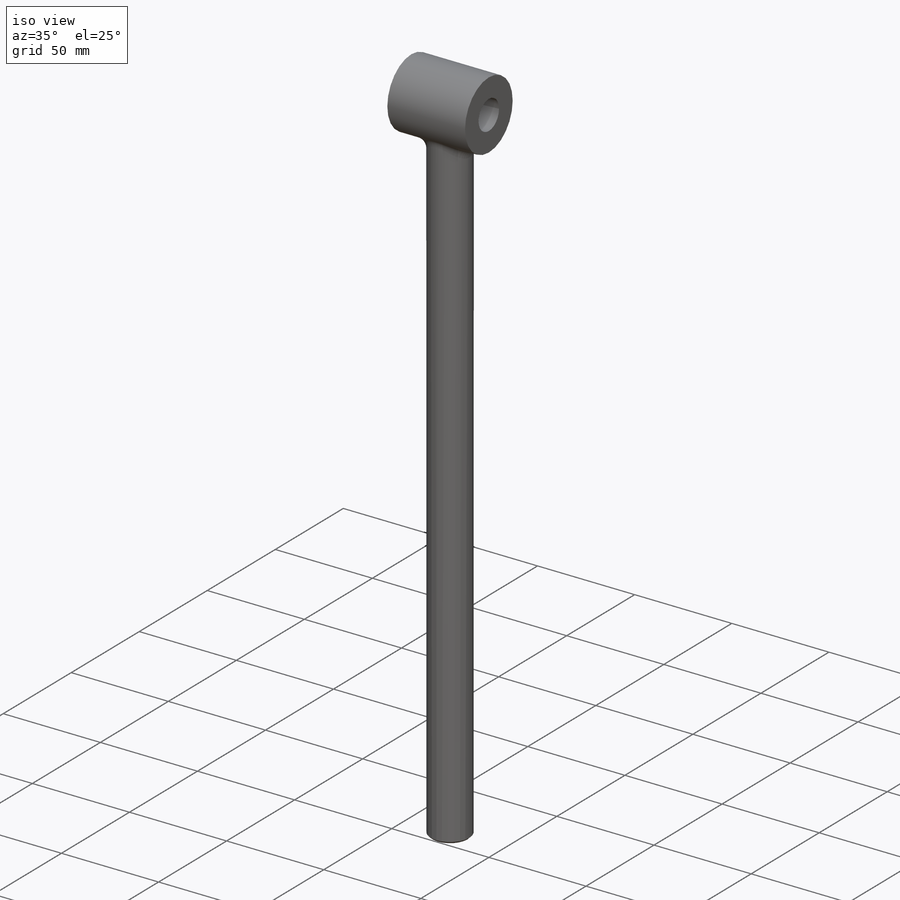
[diagram: iso view]
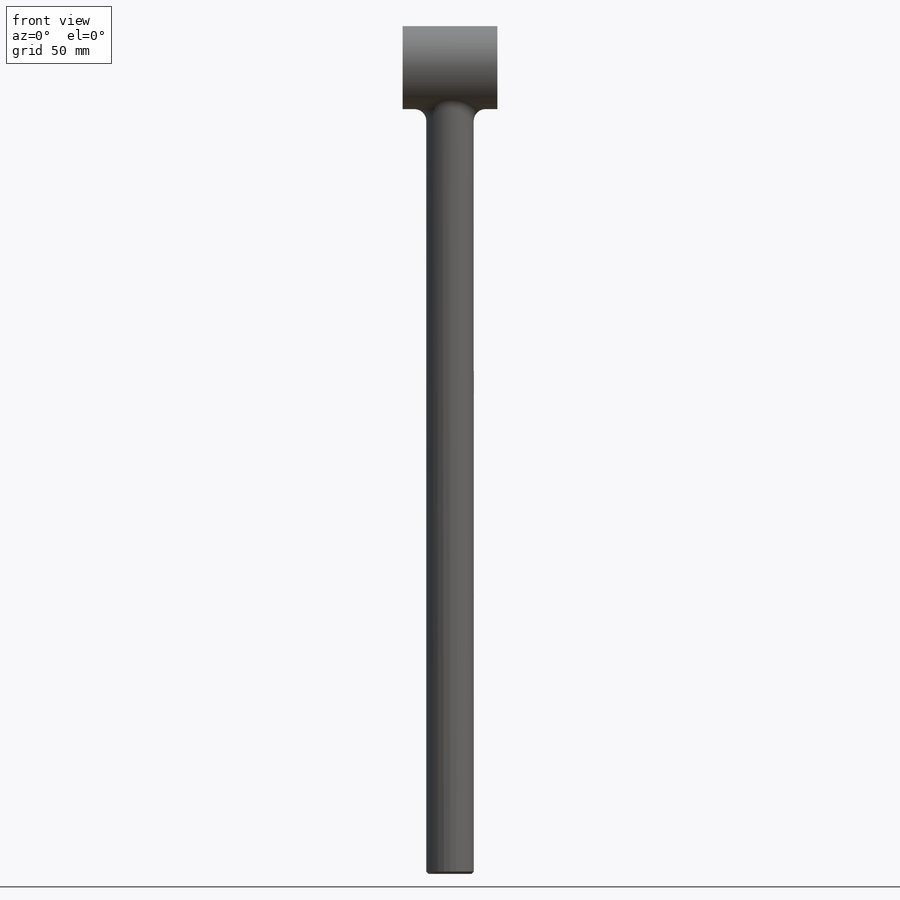
[diagram: front view]
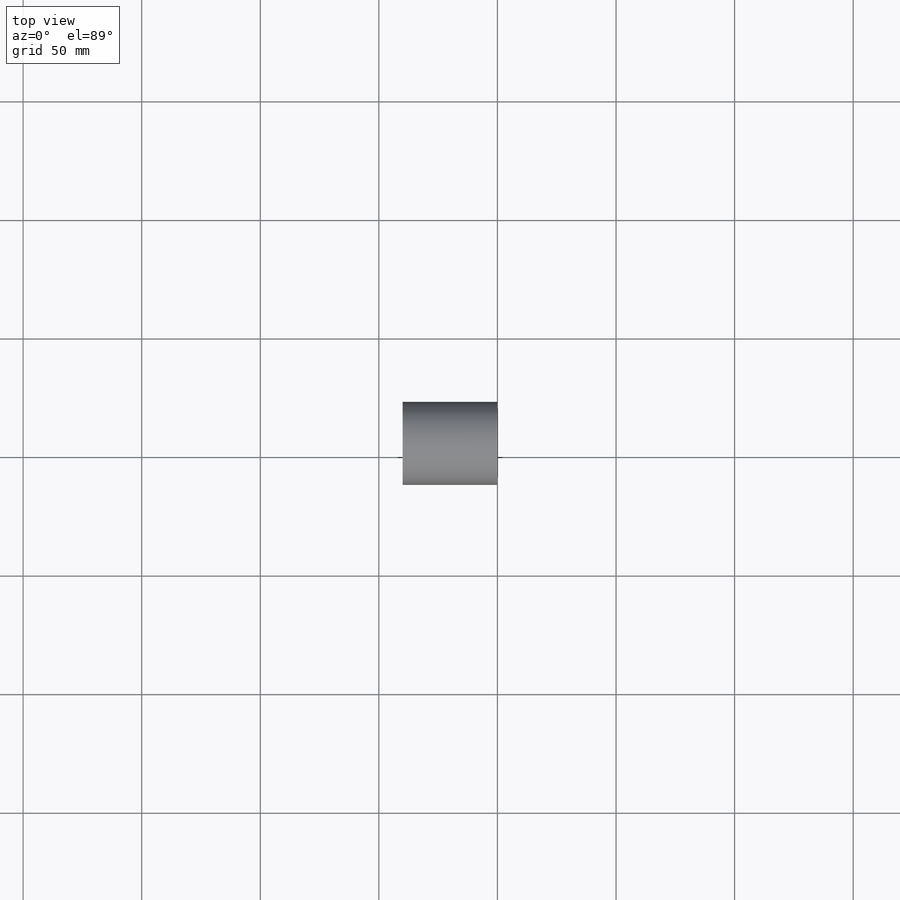
[diagram: top view]
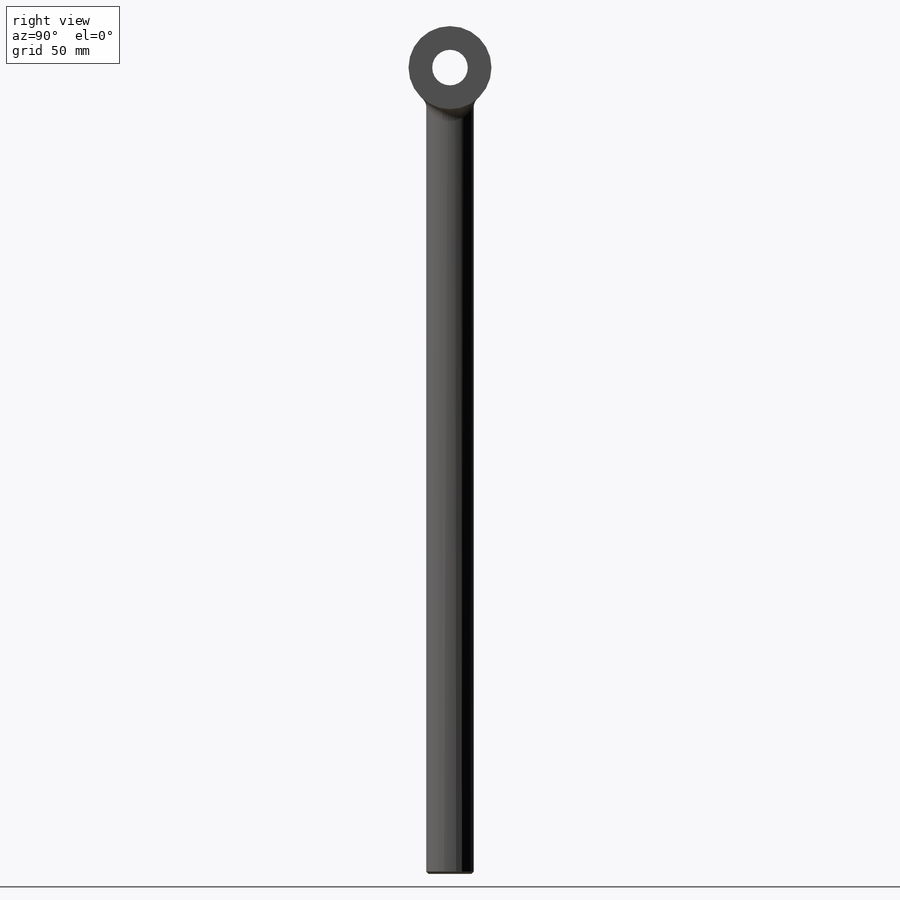
[diagram: right view]
SOLIDWORKS PART (.sldprt)
format: sldprt  version: not decoded by parser v0  size: 135,168 bytes
history: native  units: mm
features: sketch x2, extrude x2, material x1, fillet x1, chamfer x1 (+13 scaffold rows collapsed)
feature tree (20):
  scaffold x13  (default folders/planes/origin — collapsed)
  material  "Material <not specified>"
  sketch  "Sketch7"  dims[D1=35.0mm D2=15.0mm]
  extrude  "Boss-Extrude3"  Depth=40mm
  sketch  "Sketch13"  dims[D1=20.0mm]
  extrude  "Boss-Extrude4"  Depth=300mm
  fillet  "Fillet2"  Radius=5mm
  chamfer  "Chamfer1"  Distance=1mm Angle=45deg
decode coverage: 6 of 6 modeling features carry decoded parameters
note: suppression state not decoded; provenance and decode notes live in map.json
